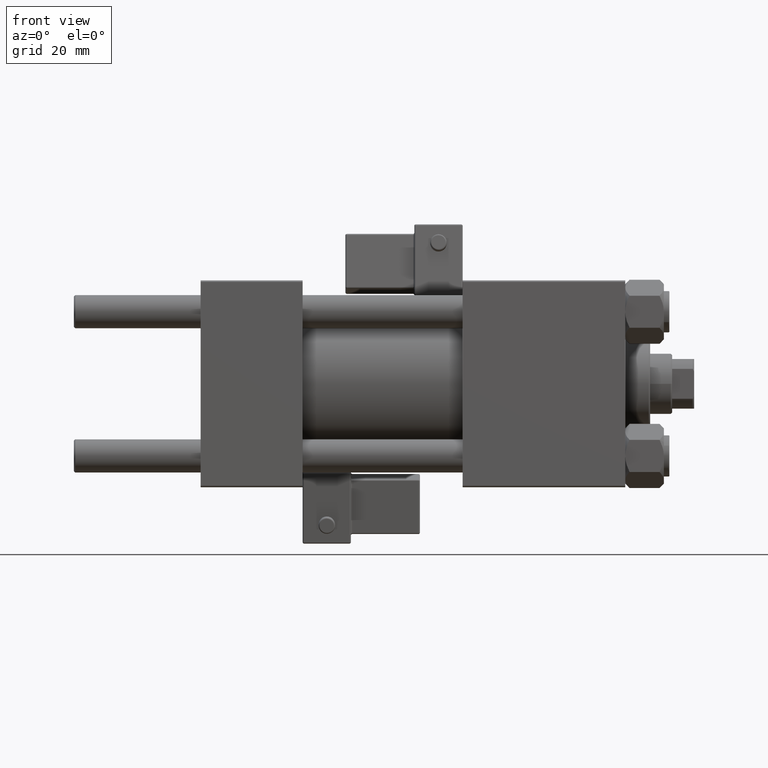
[diagram: clean part render]
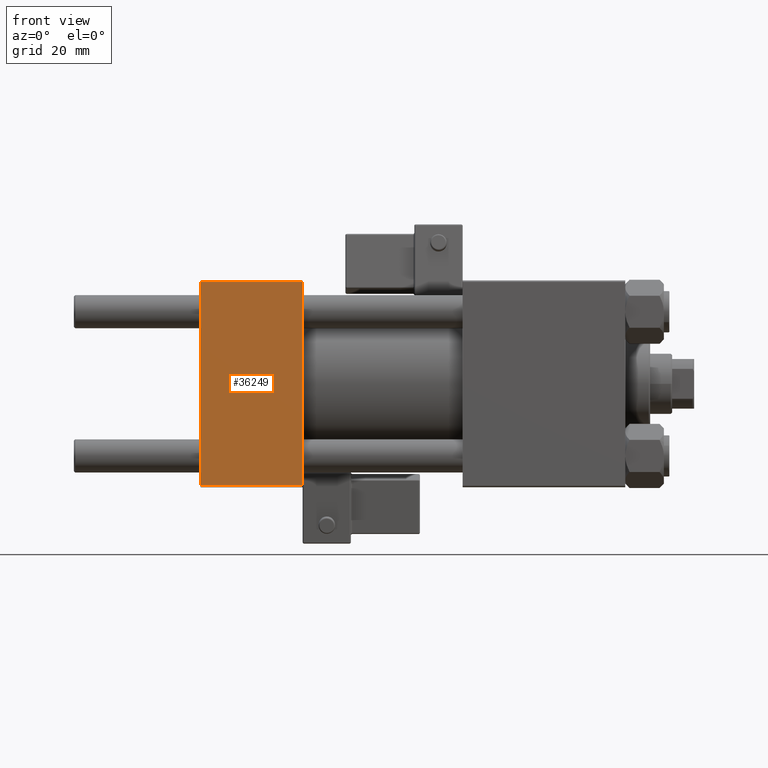
[diagram: same view with one face highlighted and labeled with its STEP entity id]
A machine part, front view. The second image highlights one B-rep face of the part: STEP entity #36249.
In plain terms, the highlighted planar face has unit normal (0, 1, 0).
Its self-contained STEP definition (entity closure, byte-faithful):
#101 = VERTEX_POINT ( 'NONE', #50715 ) ;
#147 = ORIENTED_EDGE ( 'NONE', *, *, #1127, .F. ) ;
#477 = EDGE_LOOP ( 'NONE', ( #43711, #26111, #147, #5128 ) ) ;
#1127 = EDGE_CURVE ( 'NONE', #51337, #101, #12801, .T. ) ;
#2958 = EDGE_CURVE ( 'NONE', #51337, #51778, #39550, .T. ) ;
#5128 = ORIENTED_EDGE ( 'NONE', *, *, #2958, .T. ) ;
#5912 = LINE ( 'NONE', #50053, #20031 ) ;
#10870 = EDGE_CURVE ( 'NONE', #15638, #101, #20915, .T. ) ;
#11815 = DIRECTION ( 'NONE',  ( -0.000000000000000000, 1.000000000000000000, 9.251858538542971581E-17 ) ) ;
#12801 = LINE ( 'NONE', #20397, #34986 ) ;
#15427 = EDGE_CURVE ( 'NONE', #51778, #15638, #5912, .T. ) ;
#15638 = VERTEX_POINT ( 'NONE', #47644 ) ;
#17204 = DIRECTION ( 'NONE',  ( 0.000000000000000000, 9.251858538542971581E-17, -1.000000000000000000 ) ) ;
#17758 = CARTESIAN_POINT ( 'NONE',  ( 37.00000000000000000, -37.50000000000000000, -37.00000000000003553 ) ) ;
#19037 = CARTESIAN_POINT ( 'NONE',  ( 0.000000000000000000, -37.50000000000000711, 36.99999999999999289 ) ) ;
#19860 = CARTESIAN_POINT ( 'NONE',  ( 37.00000000000000000, -37.50000000000000711, 36.99999999999999289 ) ) ;
#20031 = VECTOR ( 'NONE', #17204, 1000.000000000000000 ) ;
#20397 = CARTESIAN_POINT ( 'NONE',  ( 37.00000000000000000, -37.50000000000000711, 37.49999999999999289 ) ) ;
#20915 = LINE ( 'NONE', #17758, #40820 ) ;
#23117 = DIRECTION ( 'NONE',  ( 0.000000000000000000, -9.251858538542971581E-17, 1.000000000000000000 ) ) ;
#26111 = ORIENTED_EDGE ( 'NONE', *, *, #10870, .T. ) ;
#27566 = CARTESIAN_POINT ( 'NONE',  ( 37.00000000000000000, -37.50000000000000711, 37.49999999999999289 ) ) ;
#31396 = CARTESIAN_POINT ( 'NONE',  ( 37.00000000000000000, -37.50000000000000711, 36.99999999999999289 ) ) ;
#32736 = DIRECTION ( 'NONE',  ( 0.000000000000000000, 9.251858538542971581E-17, -1.000000000000000000 ) ) ;
#33247 = DIRECTION ( 'NONE',  ( 1.000000000000000000, 0.000000000000000000, 0.000000000000000000 ) ) ;
#34986 = VECTOR ( 'NONE', #32736, 1000.000000000000000 ) ;
#35442 = FACE_OUTER_BOUND ( 'NONE', #477, .T. ) ;
#36249 = ADVANCED_FACE ( 'NONE', ( #35442 ), #51241, .F. ) ;
#39550 = LINE ( 'NONE', #31396, #41590 ) ;
#40820 = VECTOR ( 'NONE', #33247, 1000.000000000000000 ) ;
#41590 = VECTOR ( 'NONE', #51396, 1000.000000000000000 ) ;
#43711 = ORIENTED_EDGE ( 'NONE', *, *, #15427, .T. ) ;
#47644 = CARTESIAN_POINT ( 'NONE',  ( 0.000000000000000000, -37.50000000000000000, -37.00000000000003553 ) ) ;
#48972 = AXIS2_PLACEMENT_3D ( 'NONE', #27566, #11815, #23117 ) ;
#50053 = CARTESIAN_POINT ( 'NONE',  ( 0.000000000000000000, -37.50000000000000711, 37.49999999999999289 ) ) ;
#50715 = CARTESIAN_POINT ( 'NONE',  ( 37.00000000000000000, -37.50000000000000000, -37.00000000000003553 ) ) ;
#51241 = PLANE ( 'NONE',  #48972 ) ;
#51337 = VERTEX_POINT ( 'NONE', #19860 ) ;
#51396 = DIRECTION ( 'NONE',  ( -1.000000000000000000, 0.000000000000000000, 0.000000000000000000 ) ) ;
#51778 = VERTEX_POINT ( 'NONE', #19037 ) ;